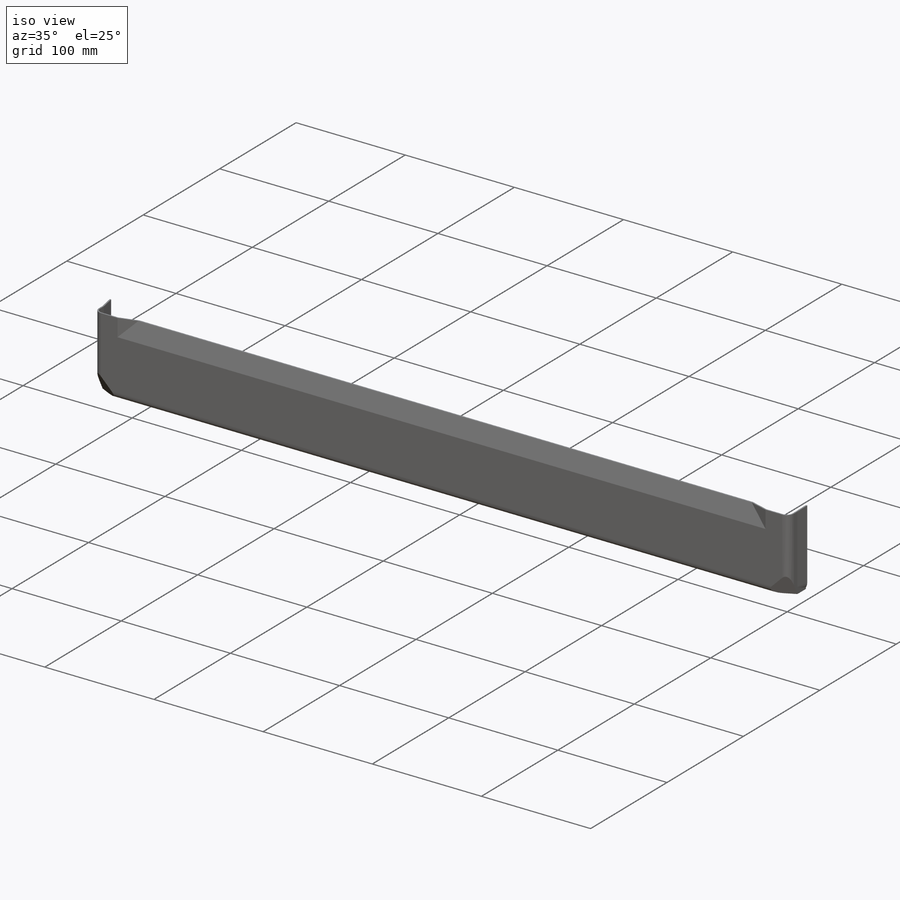
[diagram: iso view]
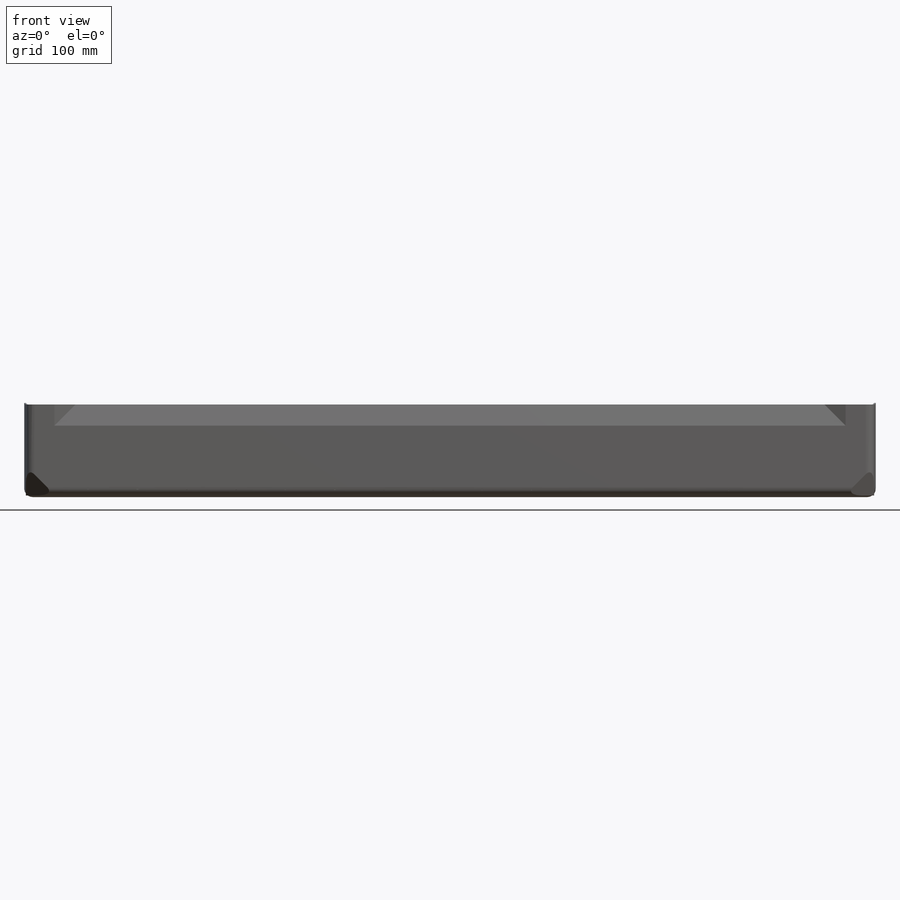
[diagram: front view]
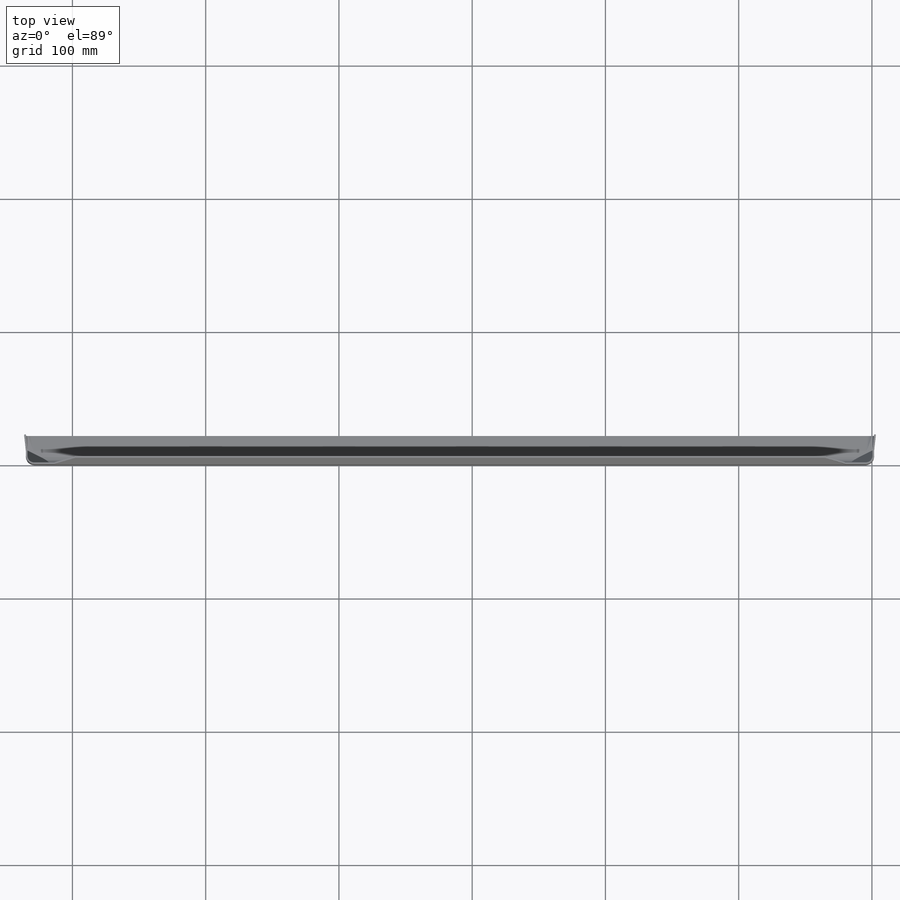
[diagram: top view]
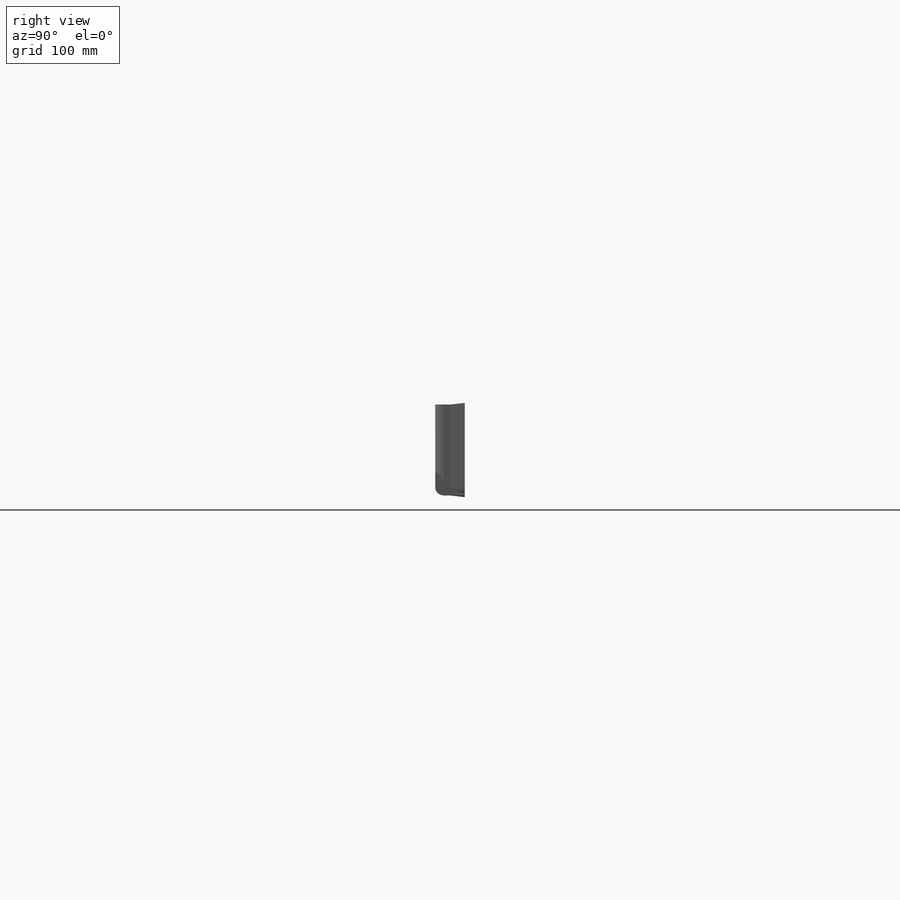
[diagram: right view]
SOLIDWORKS PART (.sldprt)
format: sldprt  version: not decoded by parser v0  size: 341,504 bytes
history: native  units: mm
features: sketch x5, cut_extrude x3, extrude x2, material x1, fillet x1, shell x1 (+12 scaffold rows collapsed)
feature tree (25):
  scaffold x12  (default folders/planes/origin — collapsed)
  material  "Material <not specified>"
  sketch  "Sketch1"  dims[D1=636.5875mm D2=68.2625mm]
  extrude  "Extrude1"  Depth=22.225mm
  sketch  "3DSketch1"  dims[D1=22.225mm]
  cut_extrude  "Cut-Extrude1"  Depth=22.225mm
  sketch  "3DSketch2"  dims[D1=22.225mm]
  cut_extrude  "Cut-Extrude2"  Depth=22.225mm
  sketch  "3DSketch3"
  extrude  "Extrude3"  [1 undecoded]
  fillet  "Fillet7"  Radius=6.35mm
  sketch  "Sketch2"  dims[D1=~21.43125mm D2=~21.43125mm]
  cut_extrude  "Cut-Extrude3"  Depth=4.7625mm
  shell  "Shell1"  Thickness=1.190625mm
decode coverage: 10 of 12 modeling features carry decoded parameters
note: ~ marks probable driven/reference dimensions
note: 1 parameter value undecoded
note: suppression state not decoded; provenance and decode notes live in map.json
